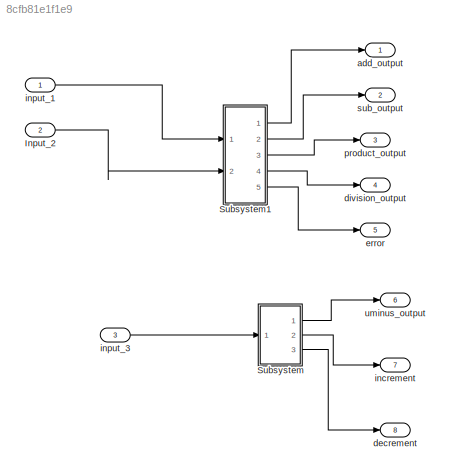
MODEL slx_8cfb81e1f1e9
KIND model
CONFIG AbsTol = auto
CONFIG EnableMultiTasking = off
CONFIG FixedStep = auto
CONFIG MaxStep = auto
CONFIG MinStep = auto
CONFIG RelTol = 1e-3
CONFIG SampleTimeConstraint = Unconstrained
CONFIG SolverName = FixedStepDiscrete
CONFIG StartTime = 0.0
CONFIG StopTime = 10.0
BLOCK [Inport] Input_2
  Port = 2
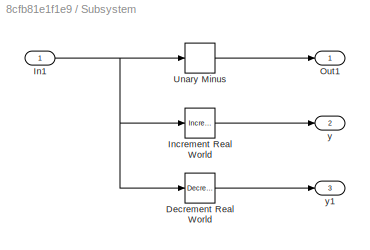
BLOCK [SubSystem] Subsystem
  Ports = [1, 3]
  RequestExecContextInheritance = off
BLOCK [Reference] Subsystem/Decrement Real World  REF=simulink/Additional Math
& Discrete/Additional Math:
Increment - Decrement/Decrement
Real World
  Ports = [1, 1]
  SourceBlock = simulink/Additional Math\n& Discrete/Additional Math:\nIncrement - Decrement/Decrement\nReal World
  SourceProductBaseCode = SL
  SourceType = Real World Value Decrement
BLOCK [Inport] Subsystem/In1
BLOCK [Reference] Subsystem/Increment Real World  REF=simulink/Additional Math
& Discrete/Additional Math:
Increment - Decrement/Increment
Real World
  Ports = [1, 1]
  SourceBlock = simulink/Additional Math\n& Discrete/Additional Math:\nIncrement - Decrement/Increment\nReal World
  SourceProductBaseCode = SL
  SourceType = Real World Value Increment
BLOCK [Outport] Subsystem/Out1
BLOCK [UnaryMinus] Subsystem/Unary Minus
BLOCK [Outport] Subsystem/y
  Port = 2
BLOCK [Outport] Subsystem/y1
  Port = 3
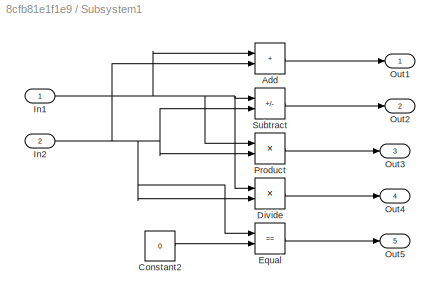
BLOCK [SubSystem] Subsystem1
  Ports = [2, 5]
  RequestExecContextInheritance = off
BLOCK [Sum] Subsystem1/Add
  IconShape = rectangular
  Ports = [2, 1]
BLOCK [Constant] Subsystem1/Constant2
  Value = 0
BLOCK [Product] Subsystem1/Divide
  Inputs = */
  Ports = [2, 1]
BLOCK [RelationalOperator] Subsystem1/Equal
  InputSameDT = off
  Operator = ==
  OutDataTypeStr = boolean
  Ports = [2, 1]
  RndMeth = Simplest
BLOCK [Inport] Subsystem1/In1
BLOCK [Inport] Subsystem1/In2
  Port = 2
BLOCK [Outport] Subsystem1/Out1
BLOCK [Outport] Subsystem1/Out2
  Port = 2
BLOCK [Outport] Subsystem1/Out3
  Port = 3
BLOCK [Outport] Subsystem1/Out4
  Port = 4
BLOCK [Outport] Subsystem1/Out5
  Port = 5
BLOCK [Product] Subsystem1/Product
  Ports = [2, 1]
BLOCK [Sum] Subsystem1/Subtract
  IconShape = rectangular
  Inputs = +-
  Ports = [2, 1]
BLOCK [Outport] add_output
BLOCK [Outport] decrement
  Port = 8
BLOCK [Outport] division_output
  Port = 4
BLOCK [Outport] error
  Port = 5
BLOCK [Outport] increment
  Port = 7
BLOCK [Inport] input_1
BLOCK [Inport] input_3
  Port = 3
BLOCK [Outport] product_output
  Port = 3
BLOCK [Outport] sub_output
  Port = 2
BLOCK [Outport] uminus_output
  Port = 6
LINE Input_2:1 -> Subsystem1:2
LINE Subsystem/Decrement Real World:1 -> Subsystem/y1:1
NET Subsystem/In1:1 -> Subsystem/Decrement Real World:1, Subsystem/Increment Real World:1, Subsystem/Unary Minus:1
LINE Subsystem/Increment Real World:1 -> Subsystem/y:1
LINE Subsystem/Unary Minus:1 -> Subsystem/Out1:1
LINE Subsystem1/Add:1 -> Subsystem1/Out1:1
LINE Subsystem1/Constant2:1 -> Subsystem1/Equal:2
LINE Subsystem1/Divide:1 -> Subsystem1/Out4:1
LINE Subsystem1/Equal:1 -> Subsystem1/Out5:1
NET Subsystem1/In1:1 -> Subsystem1/Add:1, Subsystem1/Divide:1, Subsystem1/Product:1, Subsystem1/Subtract:1
NET Subsystem1/In2:1 -> Subsystem1/Add:2, Subsystem1/Divide:2, Subsystem1/Equal:1, Subsystem1/Product:2, Subsystem1/Subtract:2
LINE Subsystem1/Product:1 -> Subsystem1/Out3:1
LINE Subsystem1/Subtract:1 -> Subsystem1/Out2:1
LINE Subsystem1:1 -> add_output:1
LINE Subsystem1:2 -> sub_output:1
LINE Subsystem1:3 -> product_output:1
LINE Subsystem1:4 -> division_output:1
LINE Subsystem1:5 -> error:1
LINE Subsystem:1 -> uminus_output:1
LINE Subsystem:2 -> increment:1
LINE Subsystem:3 -> decrement:1
LINE input_1:1 -> Subsystem1:1
LINE input_3:1 -> Subsystem:1
note: NET lines group one-source signal fan-out (src -> all destinations, sorted); 1:1 wires keep LINE
